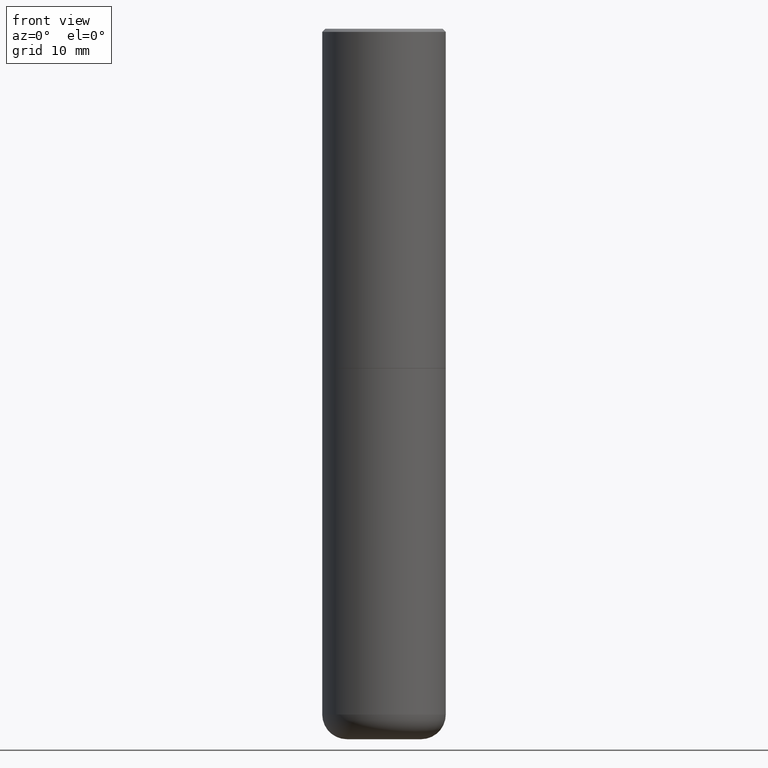
[diagram: clean part render]
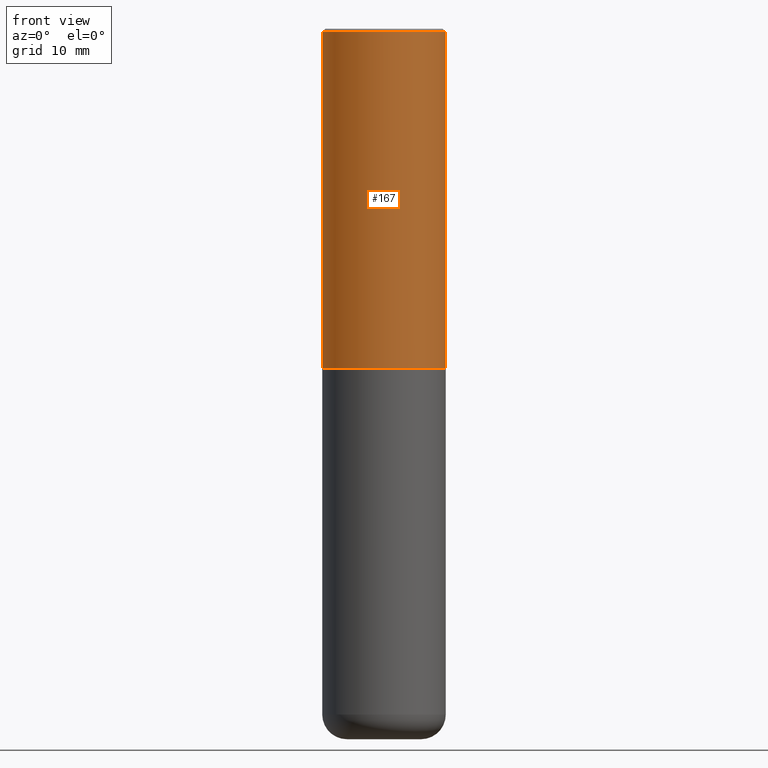
[diagram: same view with one face highlighted and labeled with its STEP entity id]
A machine part, front view. The second image highlights one B-rep face of the part: STEP entity #167.
In plain terms, the highlighted cylindrical surface (partial cylindrical patch) has radius 10 mm, axis along (-0, 0, 1).
Its self-contained STEP definition (entity closure, byte-faithful):
#8 = DIRECTION ( 'NONE',  ( 1.000000000000000000, -6.982962677686269077E-15, 0.000000000000000000 ) ) ;
#14 = DIRECTION ( 'NONE',  ( -2.445468806185136877E-29, 3.491481338843145188E-15, 1.000000000000000000 ) ) ;
#19 = LINE ( 'NONE', #23, #279 ) ;
#23 = CARTESIAN_POINT ( 'NONE',  ( 0.3937000000000002164, -2.749192406205084794E-15, 1.919750796630861012E-29 ) ) ;
#33 = AXIS2_PLACEMENT_3D ( 'NONE', #51, #366, #116 ) ;
#35 = VERTEX_POINT ( 'NONE', #42 ) ;
#42 = CARTESIAN_POINT ( 'NONE',  ( -0.3937000000000002720, -1.015989167596965718E-15, -2.164399999999999658 ) ) ;
#51 = CARTESIAN_POINT ( 'NONE',  ( 4.890937612370294178E-31, -6.982962677686321191E-17, -0.02000000000000008715 ) ) ;
#53 = EDGE_LOOP ( 'NONE', ( #150, #113, #147, #342 ) ) ;
#67 = AXIS2_PLACEMENT_3D ( 'NONE', #201, #294, #8 ) ;
#78 = LINE ( 'NONE', #208, #177 ) ;
#79 = CARTESIAN_POINT ( 'NONE',  ( -0.3937000000000001054, 2.679362779428220707E-15, -0.02000000000000008715 ) ) ;
#90 = CIRCLE ( 'NONE', #67, 0.3937000000000002720 ) ;
#92 = EDGE_CURVE ( 'NONE', #35, #281, #90, .T. ) ;
#113 = ORIENTED_EDGE ( 'NONE', *, *, #92, .T. ) ;
#115 = CARTESIAN_POINT ( 'NONE',  ( 0.3937000000000002720, -1.030615461599718763E-14, -2.164399999999999658 ) ) ;
#116 = DIRECTION ( 'NONE',  ( 1.000000000000000000, -6.982962677686266711E-15, 0.000000000000000000 ) ) ;
#117 = VERTEX_POINT ( 'NONE', #79 ) ;
#144 = DIRECTION ( 'NONE',  ( -2.445468806185136877E-29, 3.491481338843145188E-15, 1.000000000000000000 ) ) ;
#147 = ORIENTED_EDGE ( 'NONE', *, *, #370, .T. ) ;
#150 = ORIENTED_EDGE ( 'NONE', *, *, #405, .F. ) ;
#163 = AXIS2_PLACEMENT_3D ( 'NONE', #206, #195, #204 ) ;
#167 = ADVANCED_FACE ( 'NONE', ( #198 ), #399, .T. ) ;
#177 = VECTOR ( 'NONE', #14, 39.37007874015748143 ) ;
#195 = DIRECTION ( 'NONE',  ( -2.445468806185136597E-29, 3.491481338843145583E-15, 1.000000000000000000 ) ) ;
#198 = FACE_OUTER_BOUND ( 'NONE', #53, .T. ) ;
#201 = CARTESIAN_POINT ( 'NONE',  ( 5.292972684107107621E-29, -7.556962209792102838E-15, -2.164399999999999658 ) ) ;
#204 = DIRECTION ( 'NONE',  ( 1.000000000000000000, -6.982962677686266711E-15, 4.876176775795935793E-29 ) ) ;
#206 = CARTESIAN_POINT ( 'NONE',  ( 0.000000000000000000, 0.000000000000000000, 0.000000000000000000 ) ) ;
#208 = CARTESIAN_POINT ( 'NONE',  ( -0.3937000000000002164, 2.797406750687515970E-15, -1.936584745033357576E-29 ) ) ;
#279 = VECTOR ( 'NONE', #144, 39.37007874015748143 ) ;
#281 = VERTEX_POINT ( 'NONE', #115 ) ;
#288 = VERTEX_POINT ( 'NONE', #409 ) ;
#294 = DIRECTION ( 'NONE',  ( -2.445468806185136597E-29, 3.491481338843145583E-15, 1.000000000000000000 ) ) ;
#342 = ORIENTED_EDGE ( 'NONE', *, *, #346, .F. ) ;
#346 = EDGE_CURVE ( 'NONE', #117, #288, #380, .T. ) ;
#366 = DIRECTION ( 'NONE',  ( -2.445468806185136597E-29, 3.491481338843145583E-15, 1.000000000000000000 ) ) ;
#370 = EDGE_CURVE ( 'NONE', #281, #288, #19, .T. ) ;
#380 = CIRCLE ( 'NONE', #33, 0.3937000000000001054 ) ;
#399 = CYLINDRICAL_SURFACE ( 'NONE', #163, 0.3937000000000002164 ) ;
#405 = EDGE_CURVE ( 'NONE', #35, #117, #78, .T. ) ;
#409 = CARTESIAN_POINT ( 'NONE',  ( 0.3937000000000001054, -2.770807688499516128E-15, -0.02000000000000008715 ) ) ;